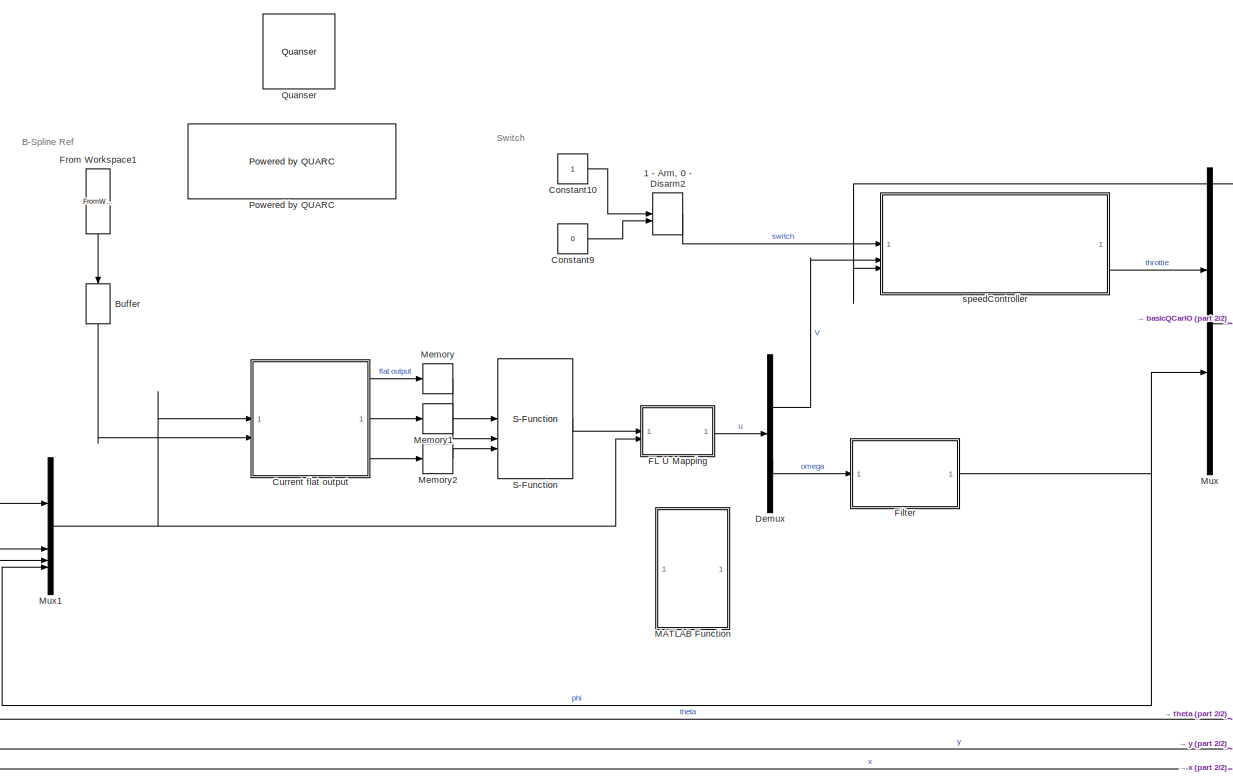
[diagram: root canvas - part 1/2, left side, full height]
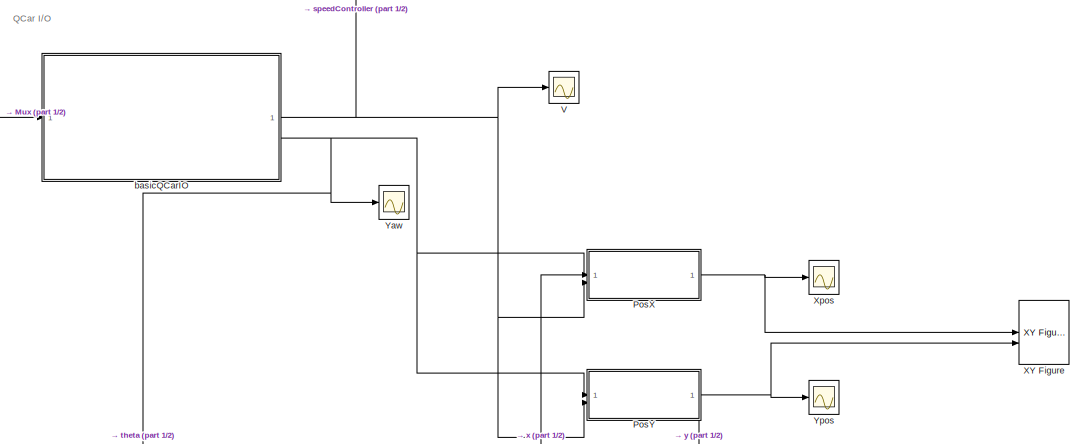
[diagram: root canvas - part 2/2, middle right region]
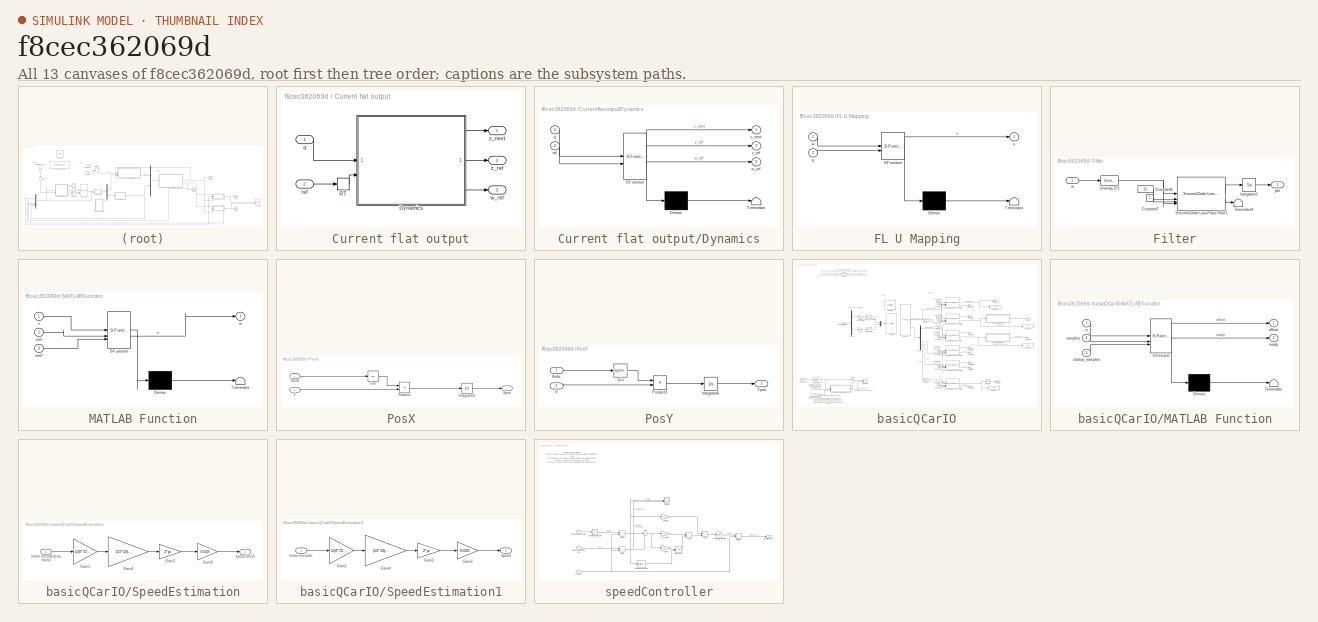
[diagram: thumbnail index - all 13 canvases of the model, root first then tree order]
MODEL slx_f8cec362069d
KIND model
CONFIG AbsTol = auto
CONFIG EnableMultiTasking = on
CONFIG FixedStep = 0.002
CONFIG MaxStep = auto
CONFIG MinStep = auto
CONFIG RelTol = 1e-3
CONFIG SampleTimeConstraint = Unconstrained
CONFIG SolverName = ode1
CONFIG StartTime = 0.0
CONFIG StopTime = inf
BLOCK [ManualSwitch] 1 - Arm, 0 - Disarm2
  NameLocation = top
BLOCK [Buffer] Buffer
  N = 54
  NameLocation = left
  OutputFrames = off
BLOCK [Constant] Constant10
BLOCK [Constant] Constant9
  Value = 0
BLOCK [SubSystem] Current flat output
BLOCK [SubSystem] Current flat output/Dynamics
  ErrorFcn = Stateflow.Translate.translate
  LibrarySourceBlock = simulink/User-Defined\nFunctions/MATLAB Function
  PermitHierarchicalResolution = ExplicitOnly
  SFBlockType = MATLAB Function
  TreatAsAtomicUnit = on
BLOCK [Demux] Current flat output/Dynamics/ Demux 
  Outputs = 1
BLOCK [S-Function] Current flat output/Dynamics/ SFunction 
  EnableBusSupport = on
  FunctionName = sf_sfun
  PortCounts = [2 4]
  SFcnIsStateOwnerBlock = off
  SFunctionDeploymentMode = off
  Tag = Stateflow S-Function 1
BLOCK [Terminator] Current flat output/Dynamics/ Terminator 
BLOCK [Inport] Current flat output/Dynamics/q
BLOCK [Inport] Current flat output/Dynamics/ref
  Port = 2
BLOCK [Outport] Current flat output/Dynamics/w_ref
  Port = 3
BLOCK [Outport] Current flat output/Dynamics/z_next
BLOCK [Outport] Current flat output/Dynamics/z_ref
  Port = 2
BLOCK [RateTransition] Current flat output/RT
  OutPortSampleTime = 0.002
BLOCK [Inport] Current flat output/q
  PortDimensions = [4,1]
BLOCK [Inport] Current flat output/ref
  Port = 2
BLOCK [Outport] Current flat output/w_ref
  Port = 3
  PortDimensions = [2,5]
BLOCK [Outport] Current flat output/z_next
  PortDimensions = [2,1]
BLOCK [Outport] Current flat output/z_ref
  Port = 2
  PortDimensions = [2,6]
BLOCK [Demux] Demux
  Outputs = 2
BLOCK [SubSystem] FL U Mapping
  ErrorFcn = Stateflow.Translate.translate
  LibrarySourceBlock = simulink/User-Defined\nFunctions/MATLAB Function
  PermitHierarchicalResolution = ExplicitOnly
  SFBlockType = MATLAB Function
  TreatAsAtomicUnit = on
BLOCK [Demux] FL U Mapping/ Demux 
  Outputs = 1
BLOCK [S-Function] FL U Mapping/ SFunction 
  EnableBusSupport = on
  FunctionName = sf_sfun
  PortCounts = [2 2]
  SFcnIsStateOwnerBlock = off
  SFunctionDeploymentMode = off
  Tag = Stateflow S-Function 4
BLOCK [Terminator] FL U Mapping/ Terminator 
BLOCK [Inport] FL U Mapping/q
  Port = 2
BLOCK [Outport] FL U Mapping/u
BLOCK [Inport] FL U Mapping/w
BLOCK [SubSystem] Filter
BLOCK [Constant] Filter/Constant7
BLOCK [Constant] Filter/Constant8
  Value = 25
BLOCK [Integrator] Filter/Integrator3
BLOCK [Reference] Filter/Second-Order Low-Pass Filter1  REF=quarc_library/Continuous/Second-Order
Low-Pass Filter
  SourceBlock = quarc_library/Continuous/Second-Order\nLow-Pass Filter
  SourceProductName = QUARC Targets
  SourceType = Second-Order Low-Pass Filter
BLOCK [Terminator] Filter/Terminator4
BLOCK [Reference] Filter/Unwrap 2^1  REF=quarc_library/Discontinuities/Inverse
Modulus
  SourceBlock = quarc_library/Discontinuities/Inverse\nModulus
  SourceProductName = QUARC Targets
  SourceType = Inverse Modulus
BLOCK [Outport] Filter/phi
BLOCK [Inport] Filter/w
BLOCK [FromWorkspace] From Workspace1
  NameLocation = left
  SampleTime = 0.1
  VariableName = ref
  ZeroCross = off
BLOCK [SubSystem] MATLAB Function
  Commented = on
  ErrorFcn = Stateflow.Translate.translate
  LibrarySourceBlock = simulink/User-Defined\nFunctions/MATLAB Function
  PermitHierarchicalResolution = ExplicitOnly
  SFBlockType = MATLAB Function
  TreatAsAtomicUnit = on
BLOCK [Demux] MATLAB Function/ Demux 
  Outputs = 1
BLOCK [S-Function] MATLAB Function/ SFunction 
  EnableBusSupport = on
  FunctionName = sf_sfun
  PortCounts = [3 2]
  SFcnIsStateOwnerBlock = off
  SFunctionDeploymentMode = off
  Tag = Stateflow S-Function 2
BLOCK [Terminator] MATLAB Function/ Terminator 
BLOCK [Outport] MATLAB Function/w
BLOCK [Inport] MATLAB Function/wref
  Port = 3
BLOCK [Inport] MATLAB Function/z
BLOCK [Inport] MATLAB Function/zref
  Port = 2
BLOCK [Memory] Memory
BLOCK [Memory] Memory1
BLOCK [Memory] Memory2
BLOCK [Mux] Mux
  DisplayOption = bar
  Inputs = 2
BLOCK [Mux] Mux1
  DisplayOption = bar
BLOCK [SubSystem] PosX
BLOCK [Trigonometry] PosX/Cos
  Operator = cos
BLOCK [Integrator] PosX/Integrator5
BLOCK [Product] PosX/Product
BLOCK [Inport] PosX/V
  Port = 2
BLOCK [Outport] PosX/Xpos
BLOCK [Inport] PosX/theta
BLOCK [SubSystem] PosY
BLOCK [Integrator] PosY/Integrator6
BLOCK [Product] PosY/Product1
BLOCK [Trigonometry] PosY/Sin
BLOCK [Inport] PosY/V
  Port = 2
BLOCK [Outport] PosY/Ypos
BLOCK [Inport] PosY/theta
BLOCK [Reference] Powered by QUARC  REF=quarc_library/Logos/Powered by QUARC
  SourceBlock = quarc_library/Logos/Powered by QUARC
  SourceProductName = QUARC Targets
  SourceType = Powered by QUARC
BLOCK [Reference] Quanser  REF=quarc_library/Logos/Quanser
  SourceBlock = quarc_library/Logos/Quanser
  SourceProductName = QUARC Targets
  SourceType = Powered by Quanser
BLOCK [S-Function] S-Function
  EnableBusSupport = off
  FunctionName = casadi_fun
  Parameters = 'flmpc_oncar.casadi','flmpc_oncar'
  SFcnIsStateOwnerBlock = off
  SFunctionDeploymentMode = off
BLOCK [Scope] V
  Floating = off
  NumInputPorts = 1
  ScopeSpecificationString = Simulink.scopes.TimeScopeBlockCfg('CurrentConfiguration', extmgr.ConfigurationSet(extmgr.Configuration('Core','General UI',true),extmgr.Configuration('Core','Source UI',true),extmgr.Configuration('Sources','WiredSimulink',true,'DataLoggingVariableName','ScopeData1'),extmgr.Configuration('Visuals','Time Domain',true,'SerializedDisplays',{struct('MinYLimReal','-0.04324','MaxYLimReal','0.38915','YLab...<+1449ch>
BLOCK [Reference] XY Figure  REF=quarc_library/Sinks/Figures/XY Figure
  SourceBlock = quarc_library/Sinks/Figures/XY Figure
  SourceProductName = QUARC Targets
  SourceType = XY Figure
BLOCK [Scope] Xpos
  Floating = off
  NumInputPorts = 1
  ScopeSpecificationString = Simulink.scopes.TimeScopeBlockCfg('CurrentConfiguration', extmgr.ConfigurationSet(extmgr.Configuration('Core','General UI',true),extmgr.Configuration('Core','Source UI',true),extmgr.Configuration('Sources','WiredSimulink',true,'DataLoggingVariableName','ScopeData9'),extmgr.Configuration('Visuals','Time Domain',true,'SerializedDisplays',{struct('MinYLimReal','-0.05223','MaxYLimReal','0.47003','YLab...<+1449ch>
BLOCK [Scope] Yaw
  Floating = off
  NumInputPorts = 1
  ScopeSpecificationString = Simulink.scopes.TimeScopeBlockCfg('CurrentConfiguration', extmgr.ConfigurationSet(extmgr.Configuration('Core','General UI',true),extmgr.Configuration('Core','Source UI',true),extmgr.Configuration('Sources','WiredSimulink',true,'DataLoggingVariableName','ScopeData1'),extmgr.Configuration('Visuals','Time Domain',true,'SerializedDisplays',{struct('MinYLimReal','-0.01224','MaxYLimReal','0.11013','YLab...<+1422ch>
BLOCK [Scope] Ypos
  Floating = off
  NumInputPorts = 1
  ScopeSpecificationString = Simulink.scopes.TimeScopeBlockCfg('CurrentConfiguration', extmgr.ConfigurationSet(extmgr.Configuration('Core','General UI',true),extmgr.Configuration('Core','Source UI',true),extmgr.Configuration('Sources','WiredSimulink',true,'DataLoggingVariableName','ScopeData10'),extmgr.Configuration('Visuals','Time Domain',true,'SerializedDisplays',{struct('MinYLimReal','-0.0056','MaxYLimReal','0.04947','YLab...<+1448ch>
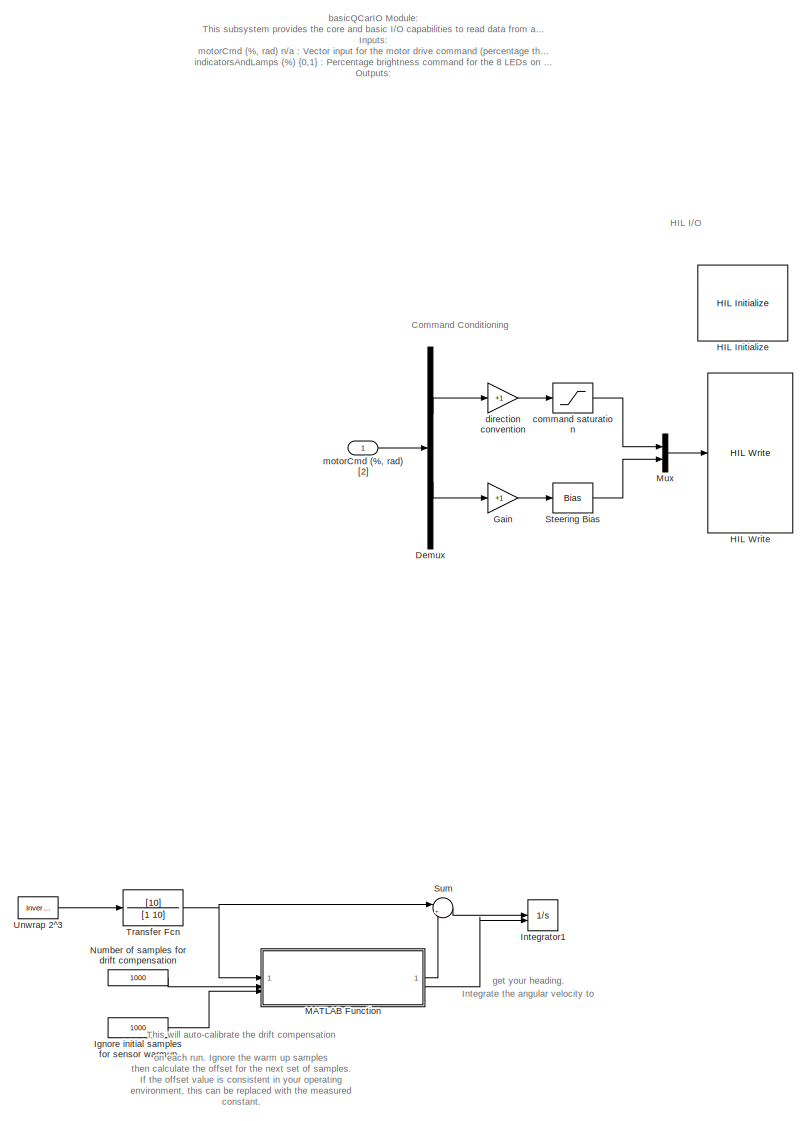
[diagram: basicQCarIO - part 1/2, left side, full height]
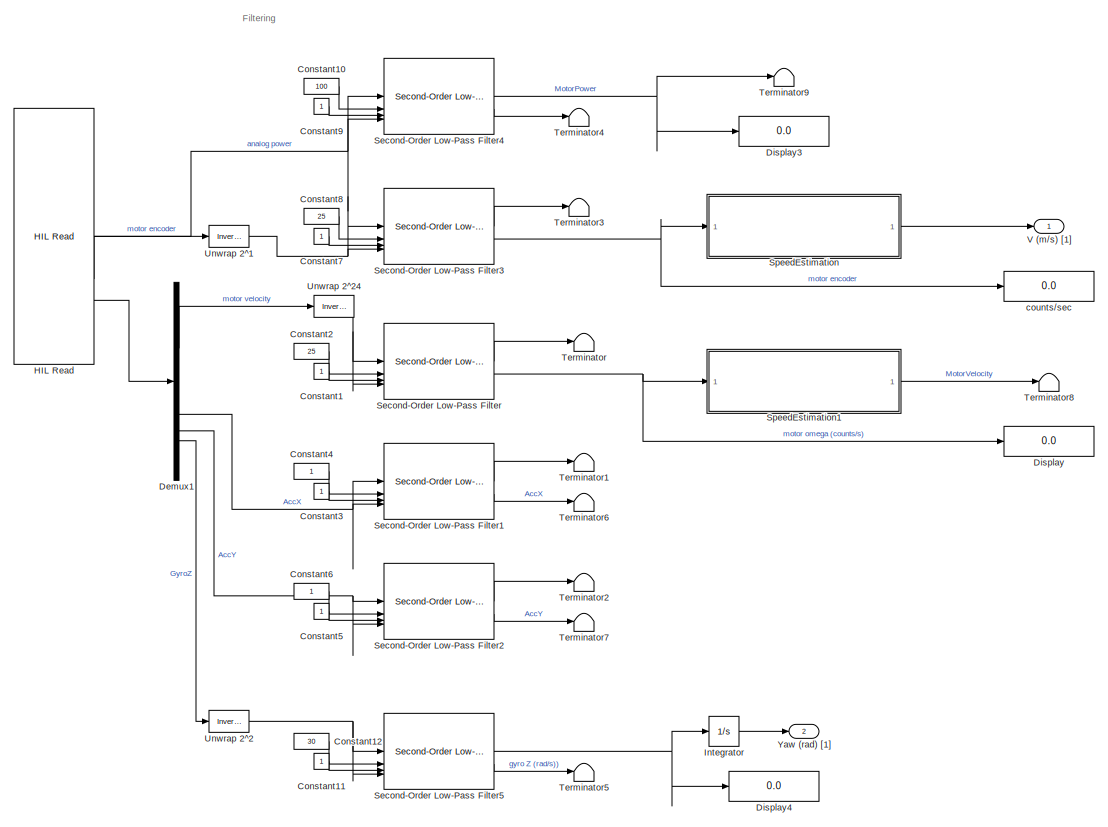
[diagram: basicQCarIO - part 2/2, middle right region]
BLOCK [SubSystem] basicQCarIO
BLOCK [Constant] basicQCarIO/Constant1
BLOCK [Constant] basicQCarIO/Constant10
  Value = 100
BLOCK [Constant] basicQCarIO/Constant11
BLOCK [Constant] basicQCarIO/Constant12
  Value = 30
BLOCK [Constant] basicQCarIO/Constant2
  Value = 25
BLOCK [Constant] basicQCarIO/Constant3
BLOCK [Constant] basicQCarIO/Constant4
BLOCK [Constant] basicQCarIO/Constant5
BLOCK [Constant] basicQCarIO/Constant6
BLOCK [Constant] basicQCarIO/Constant7
BLOCK [Constant] basicQCarIO/Constant8
  Value = 25
BLOCK [Constant] basicQCarIO/Constant9
BLOCK [Demux] basicQCarIO/Demux
  Outputs = 2
BLOCK [Demux] basicQCarIO/Demux1
BLOCK [Display] basicQCarIO/Display
  Decimation = 1
BLOCK [Display] basicQCarIO/Display3
  Decimation = 1
BLOCK [Display] basicQCarIO/Display4
  Decimation = 1
BLOCK [Gain] basicQCarIO/Gain
  Gain = +1
BLOCK [Reference] basicQCarIO/HIL Initialize  REF=quarc_library/Data Acquisition/Generic/Configuration/HIL Initialize
  AttributesFormatString = %<object_name> (%<board_type>-%<board_number>)
  SourceBlock = quarc_library/Data Acquisition/Generic/Configuration/HIL Initialize
  SourceProductName = QUARC Targets
  SourceType = HIL Initialize
  UserDataPersistent = on
BLOCK [Reference] basicQCarIO/HIL Read  REF=quarc_library/Data Acquisition/Generic/Immediate I//O/HIL Read
  AttributesFormatString = (%<object_name>)
  SourceBlock = quarc_library/Data Acquisition/Generic/Immediate I//O/HIL Read
  SourceProductName = QUARC Targets
  SourceType = HIL Read
  UserDataPersistent = on
BLOCK [Reference] basicQCarIO/HIL Write  REF=quarc_library/Data Acquisition/Generic/Immediate I//O/HIL Write
  AttributesFormatString = (%<object_name>)
  SourceBlock = quarc_library/Data Acquisition/Generic/Immediate I//O/HIL Write
  SourceProductName = QUARC Targets
  SourceType = HIL Write
  UserDataPersistent = on
BLOCK [Constant] basicQCarIO/Ignore initial samples for sensor warmup
  Commented = on
  Value = 1000
BLOCK [Integrator] basicQCarIO/Integrator
BLOCK [Integrator] basicQCarIO/Integrator1
  Commented = on
  ExternalReset = rising
BLOCK [SubSystem] basicQCarIO/MATLAB Function
  Commented = on
  ErrorFcn = Stateflow.Translate.translate
  PermitHierarchicalResolution = ExplicitOnly
  SFBlockType = MATLAB Function
  TreatAsAtomicUnit = on
BLOCK [Demux] basicQCarIO/MATLAB Function/ Demux 
  Outputs = 1
BLOCK [S-Function] basicQCarIO/MATLAB Function/ SFunction 
  EnableBusSupport = on
  FunctionName = sf_sfun
  PortCounts = [3 3]
  SFcnIsStateOwnerBlock = off
  SFunctionDeploymentMode = off
  Tag = Stateflow S-Function 3
BLOCK [Terminator] basicQCarIO/MATLAB Function/ Terminator 
BLOCK [Outport] basicQCarIO/MATLAB Function/offset
BLOCK [Outport] basicQCarIO/MATLAB Function/ready
  Port = 2
BLOCK [Inport] basicQCarIO/MATLAB Function/samples
  Port = 2
BLOCK [Inport] basicQCarIO/MATLAB Function/startup_samples
  Port = 3
BLOCK [Inport] basicQCarIO/MATLAB Function/u
BLOCK [Mux] basicQCarIO/Mux
  DisplayOption = bar
  Inputs = 2
BLOCK [Constant] basicQCarIO/Number of samples for drift compensation
  Commented = on
  Value = 1000
BLOCK [Reference] basicQCarIO/Second-Order Low-Pass Filter  REF=quarc_library/Continuous/Second-Order
Low-Pass Filter
  SourceBlock = quarc_library/Continuous/Second-Order\nLow-Pass Filter
  SourceProductName = QUARC Targets
  SourceType = Second-Order Low-Pass Filter
BLOCK [Reference] basicQCarIO/Second-Order Low-Pass Filter1  REF=quarc_library/Continuous/Second-Order
Low-Pass Filter
  SourceBlock = quarc_library/Continuous/Second-Order\nLow-Pass Filter
  SourceProductName = QUARC Targets
  SourceType = Second-Order Low-Pass Filter
BLOCK [Reference] basicQCarIO/Second-Order Low-Pass Filter2  REF=quarc_library/Continuous/Second-Order
Low-Pass Filter
  SourceBlock = quarc_library/Continuous/Second-Order\nLow-Pass Filter
  SourceProductName = QUARC Targets
  SourceType = Second-Order Low-Pass Filter
BLOCK [Reference] basicQCarIO/Second-Order Low-Pass Filter3  REF=quarc_library/Continuous/Second-Order
Low-Pass Filter
  SourceBlock = quarc_library/Continuous/Second-Order\nLow-Pass Filter
  SourceProductName = QUARC Targets
  SourceType = Second-Order Low-Pass Filter
BLOCK [Reference] basicQCarIO/Second-Order Low-Pass Filter4  REF=quarc_library/Continuous/Second-Order
Low-Pass Filter
  SourceBlock = quarc_library/Continuous/Second-Order\nLow-Pass Filter
  SourceProductName = QUARC Targets
  SourceType = Second-Order Low-Pass Filter
BLOCK [Reference] basicQCarIO/Second-Order Low-Pass Filter5  REF=quarc_library/Continuous/Second-Order
Low-Pass Filter
  SourceBlock = quarc_library/Continuous/Second-Order\nLow-Pass Filter
  SourceProductName = QUARC Targets
  SourceType = Second-Order Low-Pass Filter
BLOCK [SubSystem] basicQCarIO/SpeedEstimation
BLOCK [Gain] basicQCarIO/SpeedEstimation/Gain1
  Gain = 1/(4*720)
BLOCK [Gain] basicQCarIO/SpeedEstimation/Gain2
  Gain = 2*pi
BLOCK [Gain] basicQCarIO/SpeedEstimation/Gain3
  Gain = 0.033
BLOCK [Gain] basicQCarIO/SpeedEstimation/Gain4
  Gain = (13*19)/(70*37)
BLOCK [Inport] basicQCarIO/SpeedEstimation/motor encoder(counts//s)
BLOCK [Outport] basicQCarIO/SpeedEstimation/speed (m//s)
BLOCK [SubSystem] basicQCarIO/SpeedEstimation1
BLOCK [Gain] basicQCarIO/SpeedEstimation1/Gain1
  Gain = 1/(4*720)
BLOCK [Gain] basicQCarIO/SpeedEstimation1/Gain2
  Gain = 2*pi
BLOCK [Gain] basicQCarIO/SpeedEstimation1/Gain3
  Gain = 0.033
BLOCK [Gain] basicQCarIO/SpeedEstimation1/Gain4
  Gain = (13*19)/(70*37)
BLOCK [Inport] basicQCarIO/SpeedEstimation1/motor encoder
BLOCK [Outport] basicQCarIO/SpeedEstimation1/speed
BLOCK [Bias] basicQCarIO/Steering Bias
  Bias = 0.018
  SaturateOnIntegerOverflow = off
BLOCK [Sum] basicQCarIO/Sum
  Commented = on
  Inputs = |+-
BLOCK [Terminator] basicQCarIO/Terminator
BLOCK [Terminator] basicQCarIO/Terminator1
BLOCK [Terminator] basicQCarIO/Terminator2
BLOCK [Terminator] basicQCarIO/Terminator3
BLOCK [Terminator] basicQCarIO/Terminator4
BLOCK [Terminator] basicQCarIO/Terminator5
BLOCK [Terminator] basicQCarIO/Terminator6
BLOCK [Terminator] basicQCarIO/Terminator7
BLOCK [Terminator] basicQCarIO/Terminator8
BLOCK [Terminator] basicQCarIO/Terminator9
BLOCK [TransferFcn] basicQCarIO/Transfer Fcn
  Commented = on
  Denominator = [1 10]
  Numerator = [10]
BLOCK [Reference] basicQCarIO/Unwrap 2^1  REF=quarc_library/Discontinuities/Inverse
Modulus
  SourceBlock = quarc_library/Discontinuities/Inverse\nModulus
  SourceProductName = QUARC Targets
  SourceType = Inverse Modulus
BLOCK [Reference] basicQCarIO/Unwrap 2^2  REF=quarc_library/Discontinuities/Inverse
Modulus
  SourceBlock = quarc_library/Discontinuities/Inverse\nModulus
  SourceProductName = QUARC Targets
  SourceType = Inverse Modulus
BLOCK [Reference] basicQCarIO/Unwrap 2^24  REF=quarc_library/Discontinuities/Inverse
Modulus
  SourceBlock = quarc_library/Discontinuities/Inverse\nModulus
  SourceProductName = QUARC Targets
  SourceType = Inverse Modulus
BLOCK [Reference] basicQCarIO/Unwrap 2^3  REF=quarc_library/Discontinuities/Inverse
Modulus
  Commented = on
  SourceBlock = quarc_library/Discontinuities/Inverse\nModulus
  SourceProductName = QUARC Targets
  SourceType = Inverse Modulus
BLOCK [Outport] basicQCarIO/V (m//s) [1]
  VectorParamsAs1DForOutWhenUnconnected = off
BLOCK [Outport] basicQCarIO/Yaw (rad) [1]
  Port = 2
  VectorParamsAs1DForOutWhenUnconnected = off
BLOCK [Saturate] basicQCarIO/command saturation
  LowerLimit = -0.25
  NameLocation = top
  UpperLimit = 0.25
BLOCK [Display] basicQCarIO/counts//sec
  Decimation = 1
BLOCK [Gain] basicQCarIO/direction convention
  Gain = +1
  NameLocation = top
BLOCK [Inport] basicQCarIO/motorCmd (%, rad) [2]
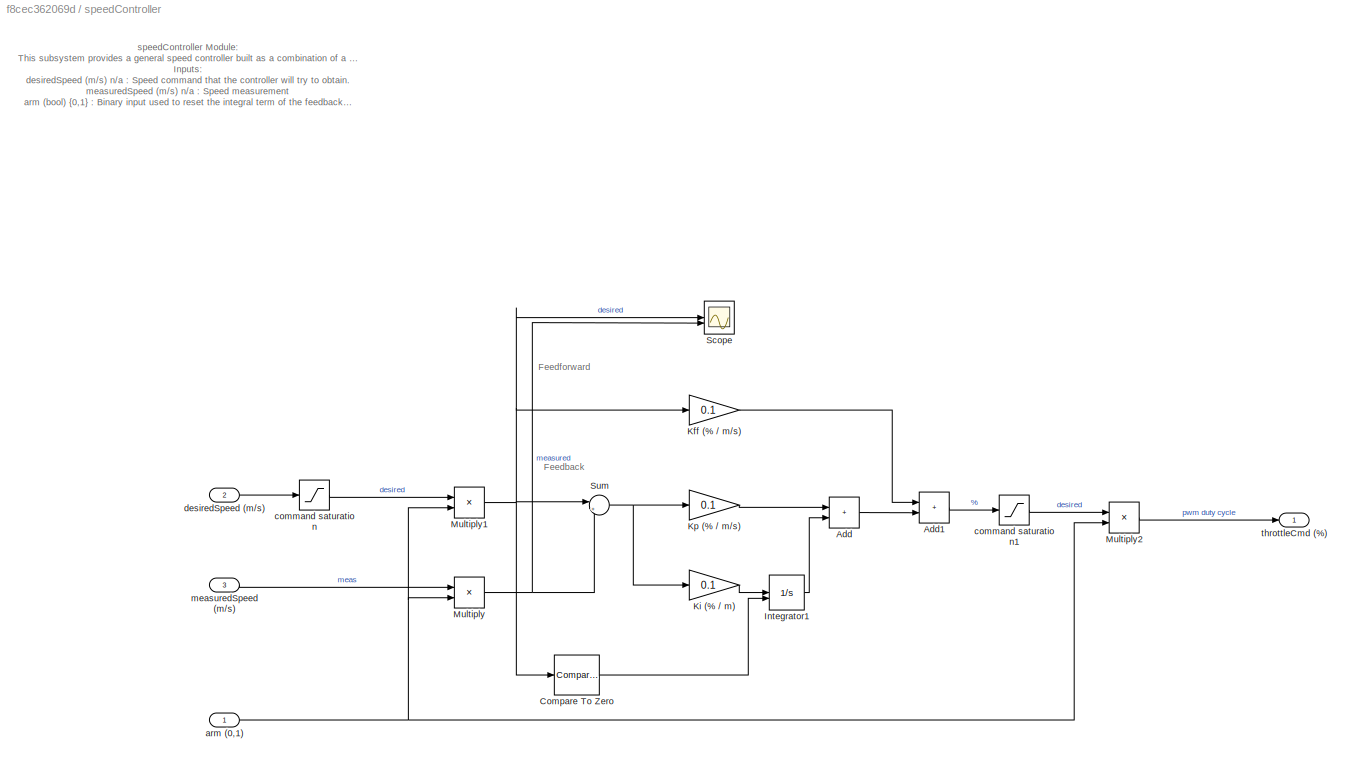
BLOCK [SubSystem] speedController
BLOCK [Sum] speedController/Add
  IconShape = rectangular
BLOCK [Sum] speedController/Add1
  IconShape = rectangular
BLOCK [Reference] speedController/Compare To Zero  REF=simulink/Logic and Bit
Operations/Compare
To Zero
  SourceBlock = simulink/Logic and Bit\nOperations/Compare\nTo Zero
  SourceType = Compare To Zero
BLOCK [Integrator] speedController/Integrator1
  ExternalReset = either
  LimitOutput = on
  LowerSaturationLimit = -0.4
  UpperSaturationLimit = 0.4
BLOCK [Gain] speedController/Kff (% // m//s)
  Gain = 0.1
BLOCK [Gain] speedController/Ki (% // m) 
  Gain = 0.1
BLOCK [Gain] speedController/Kp (% // m//s)
  Gain = 0.1
BLOCK [Product] speedController/Multiply
BLOCK [Product] speedController/Multiply1
BLOCK [Product] speedController/Multiply2
BLOCK [Scope] speedController/Scope
  Floating = off
  NumInputPorts = 2
  ScopeSpecificationString = Simulink.scopes.TimeScopeBlockCfg('CurrentConfiguration', extmgr.ConfigurationSet(extmgr.Configuration('Core','General UI',true),extmgr.Configuration('Core','Source UI',true),extmgr.Configuration('Sources','WiredSimulink',true,'DataLoggingVariableName','ScopeData1'),extmgr.Configuration('Visuals','Time Domain',true,'SerializedDisplays',{struct('MinYLimReal','-0.78959','MaxYLimReal','0.56785','YLab...<+1489ch>
BLOCK [Sum] speedController/Sum
  Inputs = |+-
BLOCK [Inport] speedController/arm (0,1)
BLOCK [Saturate] speedController/command saturation
  LowerLimit = -0.8
  UpperLimit = 0.8
BLOCK [Saturate] speedController/command saturation1
BLOCK [Inport] speedController/desiredSpeed (m//s)
  Port = 2
BLOCK [Inport] speedController/measuredSpeed (m//s)
  Port = 3
BLOCK [Outport] speedController/throttleCmd (%)
  VectorParamsAs1DForOutWhenUnconnected = off
ANNOTATION (root): B-Spline Ref
ANNOTATION (root): QCar I/O
ANNOTATION (root): Switch
ANNOTATION basicQCarIO: basicQCarIO Module: This subsystem provides the core and basic I/O capabilities to read data from and write data to the QCar platform. The HIL Initialize block configures the IO settings, and the HIL Write and Read blocks are used for the actual IO. You can also monitor sample and communication times. Inputs: motorCmd (%, rad) n/a : Vector input for the motor drive command (percentage throttle) as...<+426ch>
ANNOTATION basicQCarIO: Command Conditioning
ANNOTATION basicQCarIO: Filtering
ANNOTATION basicQCarIO: HIL I/O
ANNOTATION basicQCarIO: Integrate the angular velocity to get your heading.
ANNOTATION basicQCarIO: This will auto-calibrate the drift compensation on each run. Ignore the warm up samples then calculate the offset for the next set of samples. If the offset value is consistent in your operating environment, this can be replaced with the measured constant.
ANNOTATION speedController: speedController Module: This subsystem provides a general speed controller built as a combination of a feedforward and feedback controllers. Inputs: desiredSpeed (m/s) n/a : Speed command that the controller will try to obtain. measuredSpeed (m/s) n/a : Speed measurement arm (bool) {0,1} : Binary input used to reset the integral term of the feedback controller Outputs: throttleCmd (%) n/a : Percen...<+289ch>
ANNOTATION speedController: Feedback
ANNOTATION speedController: Feedforward
LINE 1 - Arm, 0 - Disarm2:1 -> speedController:1
LINE Buffer:1 -> Current flat output:2
LINE Constant10:1 -> 1 - Arm, 0 - Disarm2:1
LINE Constant9:1 -> 1 - Arm, 0 - Disarm2:2
LINE Current flat output/Dynamics:1 -> Current flat output/z_next:1
LINE Current flat output/Dynamics:2 -> Current flat output/z_ref:1
LINE Current flat output/Dynamics:3 -> Current flat output/w_ref:1
LINE Current flat output/RT:1 -> Current flat output/Dynamics:2
LINE Current flat output/q:1 -> Current flat output/Dynamics:1
LINE Current flat output/ref:1 -> Current flat output/RT:1
LINE Current flat output:1 -> Memory:1
LINE Current flat output:2 -> Memory1:1
LINE Current flat output:3 -> Memory2:1
LINE Demux:1 -> speedController:2
LINE Demux:2 -> Filter:1
LINE FL U Mapping:1 -> Demux:1
LINE Filter/Constant7:1 -> Filter/Second-Order Low-Pass Filter1:3
LINE Filter/Constant8:1 -> Filter/Second-Order Low-Pass Filter1:2
LINE Filter/Integrator3:1 -> Filter/phi:1
LINE Filter/Second-Order Low-Pass Filter1:1 -> Filter/Integrator3:1
LINE Filter/Second-Order Low-Pass Filter1:2 -> Filter/Terminator4:1
NET Filter/Unwrap 2^1:1 -> Filter/Second-Order Low-Pass Filter1:1, Filter/Second-Order Low-Pass Filter1:4
LINE Filter/w:1 -> Filter/Unwrap 2^1:1
NET Filter:1 -> Mux1:4, Mux:2
LINE From Workspace1:1 -> Buffer:1
LINE Memory1:1 -> S-Function:2
LINE Memory2:1 -> S-Function:3
LINE Memory:1 -> S-Function:1
NET Mux1:1 -> Current flat output:1, FL U Mapping:2
LINE Mux:1 -> basicQCarIO:1
LINE PosX/Cos:1 -> PosX/Product:1
LINE PosX/Integrator5:1 -> PosX/Xpos:1
LINE PosX/Product:1 -> PosX/Integrator5:1
LINE PosX/V:1 -> PosX/Product:2
LINE PosX/theta:1 -> PosX/Cos:1
NET PosX:1 -> Mux1:1, XY Figure:1, Xpos:1
LINE PosY/Integrator6:1 -> PosY/Ypos:1
LINE PosY/Product1:1 -> PosY/Integrator6:1
LINE PosY/Sin:1 -> PosY/Product1:1
LINE PosY/V:1 -> PosY/Product1:2
LINE PosY/theta:1 -> PosY/Sin:1
NET PosY:1 -> Mux1:2, XY Figure:2, Ypos:1
LINE S-Function:1 -> FL U Mapping:1
LINE basicQCarIO/Constant10:1 -> basicQCarIO/Second-Order Low-Pass Filter4:2
LINE basicQCarIO/Constant11:1 -> basicQCarIO/Second-Order Low-Pass Filter5:3
LINE basicQCarIO/Constant12:1 -> basicQCarIO/Second-Order Low-Pass Filter5:2
LINE basicQCarIO/Constant1:1 -> basicQCarIO/Second-Order Low-Pass Filter:3
LINE basicQCarIO/Constant2:1 -> basicQCarIO/Second-Order Low-Pass Filter:2
LINE basicQCarIO/Constant3:1 -> basicQCarIO/Second-Order Low-Pass Filter1:3
LINE basicQCarIO/Constant4:1 -> basicQCarIO/Second-Order Low-Pass Filter1:2
LINE basicQCarIO/Constant5:1 -> basicQCarIO/Second-Order Low-Pass Filter2:3
LINE basicQCarIO/Constant6:1 -> basicQCarIO/Second-Order Low-Pass Filter2:2
LINE basicQCarIO/Constant7:1 -> basicQCarIO/Second-Order Low-Pass Filter3:3
LINE basicQCarIO/Constant8:1 -> basicQCarIO/Second-Order Low-Pass Filter3:2
LINE basicQCarIO/Constant9:1 -> basicQCarIO/Second-Order Low-Pass Filter4:3
LINE basicQCarIO/Demux1:1 -> basicQCarIO/Unwrap 2^24:1
NET basicQCarIO/Demux1:2 -> basicQCarIO/Second-Order Low-Pass Filter1:1, basicQCarIO/Second-Order Low-Pass Filter1:4
NET basicQCarIO/Demux1:3 -> basicQCarIO/Second-Order Low-Pass Filter2:1, basicQCarIO/Second-Order Low-Pass Filter2:4
LINE basicQCarIO/Demux1:4 -> basicQCarIO/Unwrap 2^2:1
LINE basicQCarIO/Demux:1 -> basicQCarIO/direction convention:1
LINE basicQCarIO/Demux:2 -> basicQCarIO/Gain:1
LINE basicQCarIO/Gain:1 -> basicQCarIO/Steering Bias:1
NET basicQCarIO/HIL Read:1 -> basicQCarIO/Second-Order Low-Pass Filter4:1, basicQCarIO/Second-Order Low-Pass Filter4:4
LINE basicQCarIO/HIL Read:2 -> basicQCarIO/Unwrap 2^1:1
LINE basicQCarIO/HIL Read:3 -> basicQCarIO/Demux1:1
LINE basicQCarIO/Ignore initial samples for sensor warmup:1 -> basicQCarIO/MATLAB Function:3
LINE basicQCarIO/Integrator:1 -> basicQCarIO/Yaw (rad) [1]:1
LINE basicQCarIO/MATLAB Function:1 -> basicQCarIO/Sum:2
LINE basicQCarIO/MATLAB Function:2 -> basicQCarIO/Integrator1:2
LINE basicQCarIO/Mux:1 -> basicQCarIO/HIL Write:1
LINE basicQCarIO/Number of samples for drift compensation:1 -> basicQCarIO/MATLAB Function:2
LINE basicQCarIO/Second-Order Low-Pass Filter1:1 -> basicQCarIO/Terminator1:1
LINE basicQCarIO/Second-Order Low-Pass Filter1:2 -> basicQCarIO/Terminator6:1
LINE basicQCarIO/Second-Order Low-Pass Filter2:1 -> basicQCarIO/Terminator2:1
LINE basicQCarIO/Second-Order Low-Pass Filter2:2 -> basicQCarIO/Terminator7:1
LINE basicQCarIO/Second-Order Low-Pass Filter3:1 -> basicQCarIO/Terminator3:1
NET basicQCarIO/Second-Order Low-Pass Filter3:2 -> basicQCarIO/SpeedEstimation:1, basicQCarIO/counts//sec:1
NET basicQCarIO/Second-Order Low-Pass Filter4:1 -> basicQCarIO/Display3:1, basicQCarIO/Terminator9:1
LINE basicQCarIO/Second-Order Low-Pass Filter4:2 -> basicQCarIO/Terminator4:1
NET basicQCarIO/Second-Order Low-Pass Filter5:1 -> basicQCarIO/Display4:1, basicQCarIO/Integrator:1
LINE basicQCarIO/Second-Order Low-Pass Filter5:2 -> basicQCarIO/Terminator5:1
LINE basicQCarIO/Second-Order Low-Pass Filter:1 -> basicQCarIO/Terminator:1
NET basicQCarIO/Second-Order Low-Pass Filter:2 -> basicQCarIO/Display:1, basicQCarIO/SpeedEstimation1:1
LINE basicQCarIO/SpeedEstimation/Gain1:1 -> basicQCarIO/SpeedEstimation/Gain4:1
LINE basicQCarIO/SpeedEstimation/Gain2:1 -> basicQCarIO/SpeedEstimation/Gain3:1
LINE basicQCarIO/SpeedEstimation/Gain3:1 -> basicQCarIO/SpeedEstimation/speed (m//s):1
LINE basicQCarIO/SpeedEstimation/Gain4:1 -> basicQCarIO/SpeedEstimation/Gain2:1
LINE basicQCarIO/SpeedEstimation/motor encoder(counts//s):1 -> basicQCarIO/SpeedEstimation/Gain1:1
LINE basicQCarIO/SpeedEstimation1/Gain1:1 -> basicQCarIO/SpeedEstimation1/Gain4:1
LINE basicQCarIO/SpeedEstimation1/Gain2:1 -> basicQCarIO/SpeedEstimation1/Gain3:1
LINE basicQCarIO/SpeedEstimation1/Gain3:1 -> basicQCarIO/SpeedEstimation1/speed:1
LINE basicQCarIO/SpeedEstimation1/Gain4:1 -> basicQCarIO/SpeedEstimation1/Gain2:1
LINE basicQCarIO/SpeedEstimation1/motor encoder:1 -> basicQCarIO/SpeedEstimation1/Gain1:1
LINE basicQCarIO/SpeedEstimation1:1 -> basicQCarIO/Terminator8:1
LINE basicQCarIO/SpeedEstimation:1 -> basicQCarIO/V (m//s) [1]:1
LINE basicQCarIO/Steering Bias:1 -> basicQCarIO/Mux:2
LINE basicQCarIO/Sum:1 -> basicQCarIO/Integrator1:1
NET basicQCarIO/Transfer Fcn:1 -> basicQCarIO/MATLAB Function:1, basicQCarIO/Sum:1
NET basicQCarIO/Unwrap 2^1:1 -> basicQCarIO/Second-Order Low-Pass Filter3:1, basicQCarIO/Second-Order Low-Pass Filter3:4
NET basicQCarIO/Unwrap 2^24:1 -> basicQCarIO/Second-Order Low-Pass Filter:1, basicQCarIO/Second-Order Low-Pass Filter:4
NET basicQCarIO/Unwrap 2^2:1 -> basicQCarIO/Second-Order Low-Pass Filter5:1, basicQCarIO/Second-Order Low-Pass Filter5:4
LINE basicQCarIO/Unwrap 2^3:1 -> basicQCarIO/Transfer Fcn:1
LINE basicQCarIO/command saturation:1 -> basicQCarIO/Mux:1
LINE basicQCarIO/direction convention:1 -> basicQCarIO/command saturation:1
LINE basicQCarIO/motorCmd (%, rad) [2]:1 -> basicQCarIO/Demux:1
NET basicQCarIO:1 -> PosX:2, PosY:2, V:1, speedController:3
NET basicQCarIO:2 -> Mux1:3, PosX:1, PosY:1, Yaw:1
LINE speedController/Add1:1 -> speedController/command saturation1:1
LINE speedController/Add:1 -> speedController/Add1:2
LINE speedController/Compare To Zero:1 -> speedController/Integrator1:2
LINE speedController/Integrator1:1 -> speedController/Add:2
LINE speedController/Kff (% // m//s):1 -> speedController/Add1:1
LINE speedController/Ki (% // m) :1 -> speedController/Integrator1:1
LINE speedController/Kp (% // m//s):1 -> speedController/Add:1
NET speedController/Multiply1:1 -> speedController/Compare To Zero:1, speedController/Kff (% // m//s):1, speedController/Scope:1, speedController/Sum:1
LINE speedController/Multiply2:1 -> speedController/throttleCmd (%):1
NET speedController/Multiply:1 -> speedController/Scope:2, speedController/Sum:2
NET speedController/Sum:1 -> speedController/Ki (% // m) :1, speedController/Kp (% // m//s):1
NET speedController/arm (0,1):1 -> speedController/Multiply1:2, speedController/Multiply2:2, speedController/Multiply:2
LINE speedController/command saturation1:1 -> speedController/Multiply2:1
LINE speedController/command saturation:1 -> speedController/Multiply1:1
LINE speedController/desiredSpeed (m//s):1 -> speedController/command saturation:1
LINE speedController/measuredSpeed (m//s):1 -> speedController/Multiply:1
LINE speedController:1 -> Mux:1
note: NET lines group one-source signal fan-out (src -> all destinations, sorted); 1:1 wires keep LINE
CHART Current flat output/Dynamics states=1 transitions=1
  STATE_LABEL 'eML_blk_kernel()'
  STATE_LABEL 'SCRIPT:\nfunction [z_next, z_ref, w_ref] = discrete_plant(q, ref)\n    persistent idx z_ref_internal;\n\n    if isempty(idx)\n        idx = 1;\n    end\n\n    if isempty(z_ref_internal)\n        z_ref_internal = zeros(2,1);\n    end\n\n    % Parameters\n    Npred = 5;\n    l = 0.256;\n    L = l;\n    Delta = 0.35;\n    dt = 0.1;  \n    \n    %% Next flat output\n    q_next = [q(1); q(2); q(3);q(4)];\n    z_next = [q_n...<+2299ch>'
CHART MATLAB Function states=1 transitions=1
  STATE_LABEL 'eML_blk_kernel()'
  STATE_LABEL 'SCRIPT:\nfunction w = fcn(z,zref,wref)\n\nw = zeros(2,1);\nw = [1;0];\n'
CHART basicQCarIO/MATLAB Function states=1 transitions=1
  STATE_LABEL 'eML_blk_kernel()'
  STATE_LABEL 'SCRIPT:\nfunction [offset, ready] = fcn(u, samples, startup_samples)\n\npersistent sample_sum;\npersistent remaining_samples;\npersistent last_offset;\npersistent last_ready;\npersistent remaining_startup_samples;\n\nif isempty(sample_sum)\n    sample_sum = 0;\n    remaining_samples = samples;\n    remaining_startup_samples = startup_samples;\n    last_offset = 0;\n    last_ready = 0;\nend\n\nif (remaining_startup...<+393ch>'
CHART FL U Mapping states=1 transitions=1
  STATE_LABEL 'eML_blk_kernel()'
  STATE_LABEL 'SCRIPT:\nfunction u = mapping(w, q)\n\nDelta = 0.35;\nL = 0.256;\neta = [q(3); q(4)];\ns1 = sin(eta(1)+eta(2)); c1 = cos(eta(1)+eta(2)); \nM = [cos(eta(1))-tan(eta(2))*(sin(eta(1))+Delta*s1/L), -Delta*s1;\n     sin(eta(1))+tan(eta(2))*(cos(eta(1))+Delta*c1/L),  Delta*c1];\n\nu = M^(-1) * w(:, 1);\n\nend\n'
CHART  states=0 transitions=0
CHART  states=0 transitions=0
CHART  states=0 transitions=0
CHART  states=0 transitions=0
